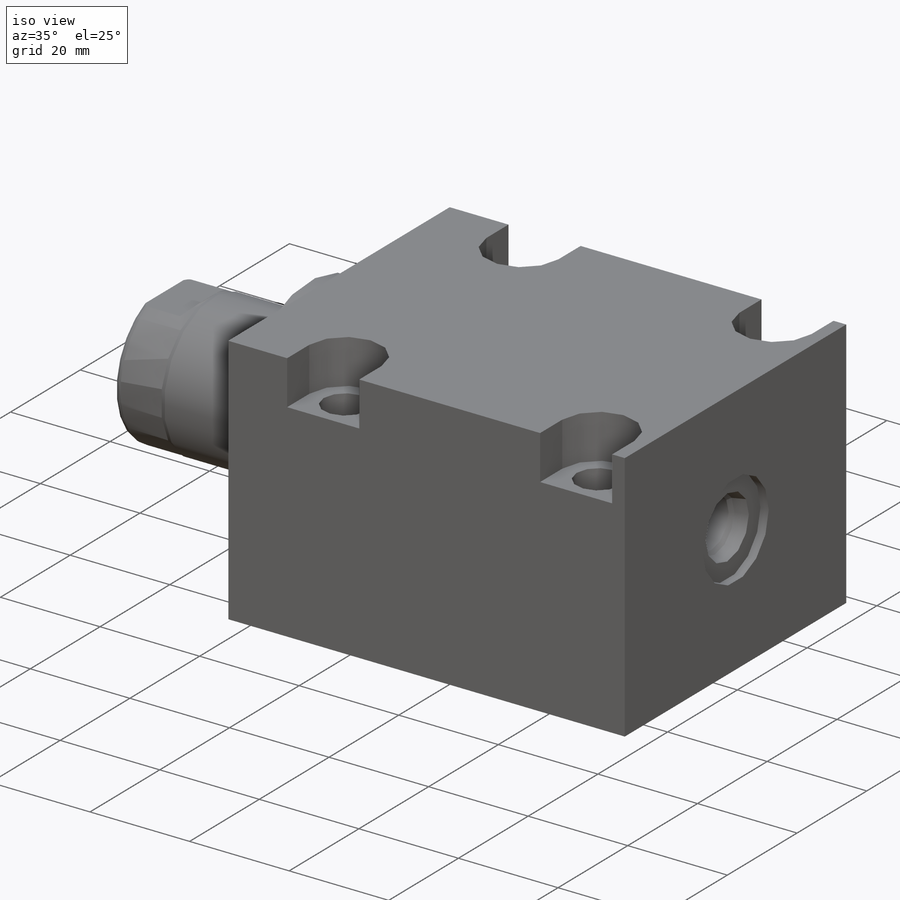
[diagram: iso view]
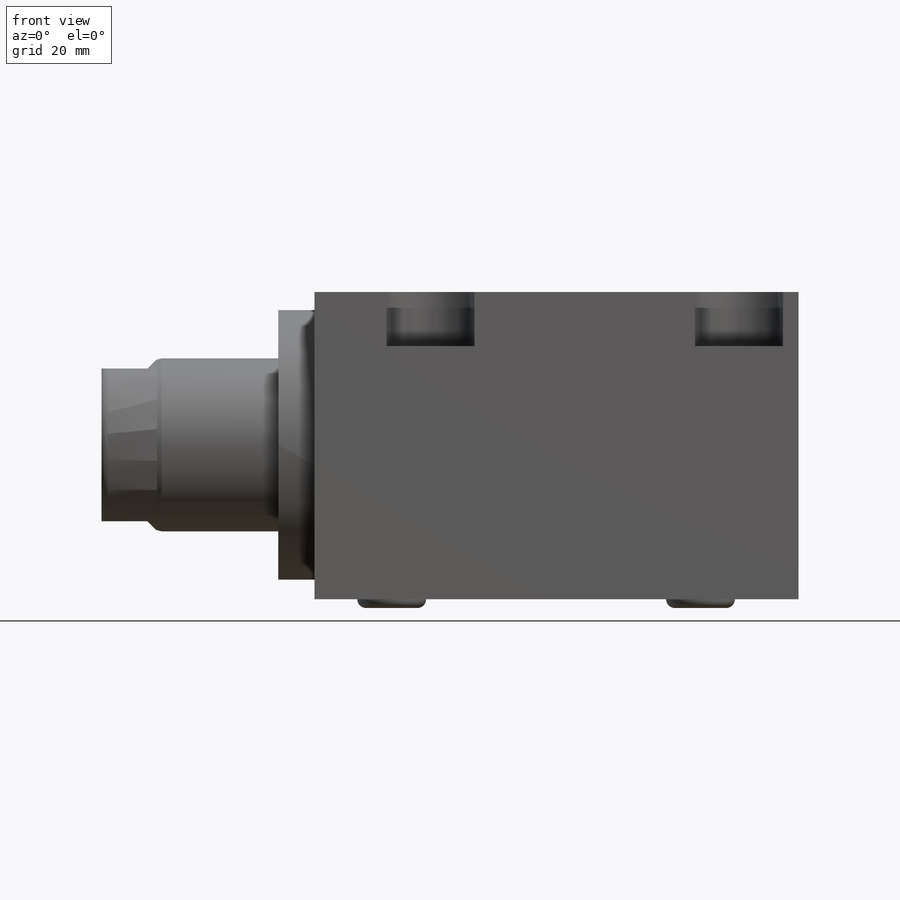
[diagram: front view]
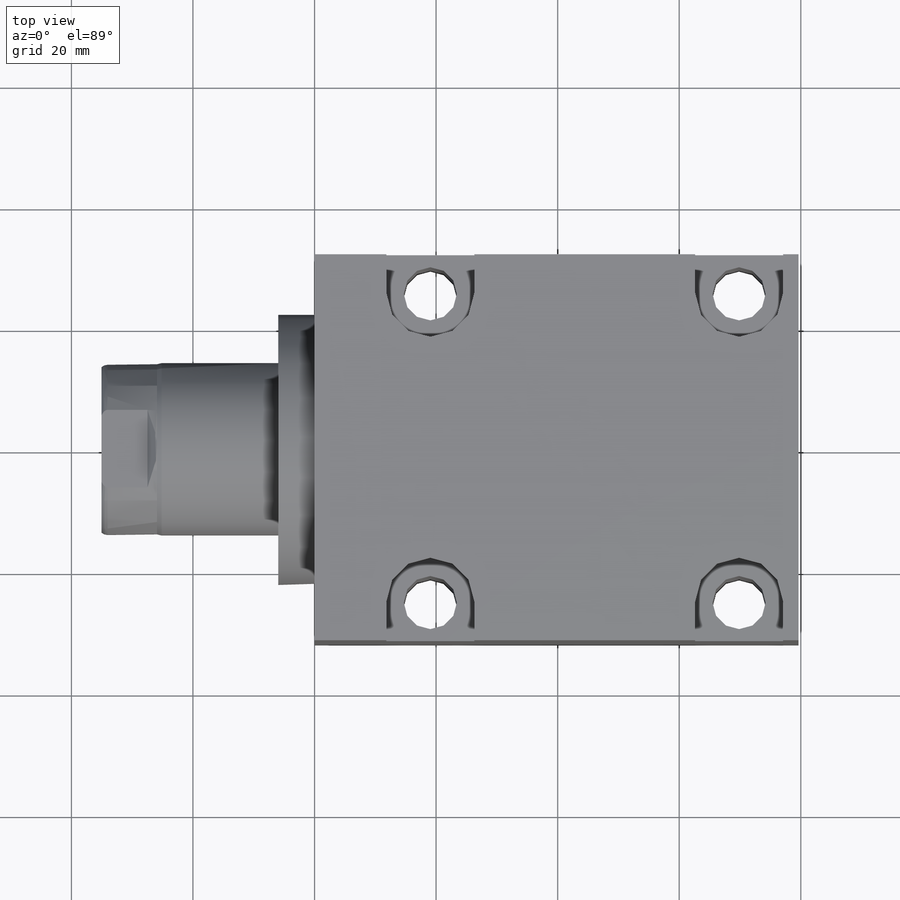
[diagram: top view]
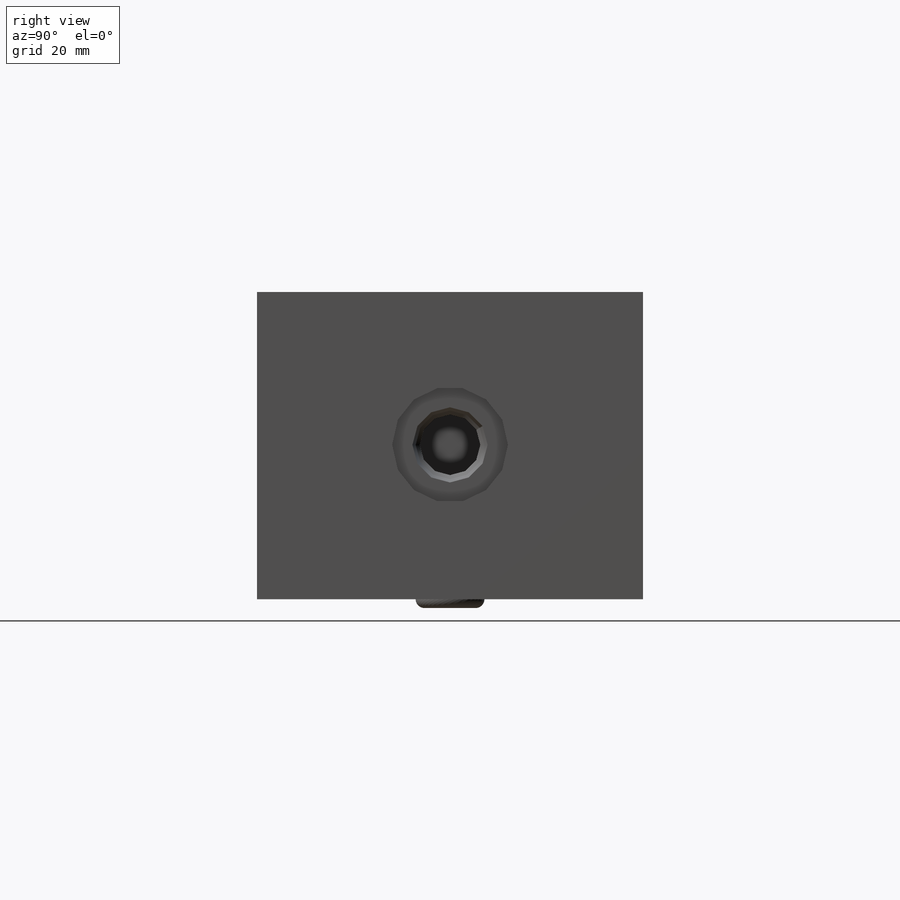
[diagram: right view]
SOLIDWORKS PART (.sldprt)
format: sldprt  version: not decoded by parser v0  size: 405,504 bytes
history: native  units: mm
features: sketch x15, plane x5, cut_revolve x3, hole x3, extrude x2, revolve x2, cut_extrude x2, pattern_linear x2, material x1, chamfer x1 (+13 scaffold rows collapsed)
feature tree (49):
  scaffold x13  (default folders/planes/origin — collapsed)
  material  "Alloy Steel"
  plane  "Plane1"
  sketch  "Sketch1"  dims[c1.D1=50.546mm c1.D2=25.4mm c1.D3=63.5mm c1.D4=31.75mm c2.D2=25.4mm]
  extrude  "Extrude1"  Depth=79.629mm
  sketch  "Sketch5"  dims[D1=44.45mm]
  extrude  "Extrude2"  Depth=5.969mm
  plane  "Plane5"
  sketch  "Sketch6"  dims[D1=114.681mm D2=28.575mm]
  revolve  "Revolve1"  Angle=360deg
  plane  "Plane6"
  sketch  "S2D0001"  dims[c1.D1=2.2352mm c2.D1=30.0deg c2.D2=13.4874mm c2.D3=11.0998mm c2.D4=16.51mm c2.D5=2.5527mm c3.D5=59.0deg c3.D4=18.4912mm]
  cut_revolve  "Cut-Revolve4"  Angle=360deg
  plane  "Plane7"
  sketch  "Sketch8"  dims[D2=1.524mm D1=28.194mm D3=1.016mm D4=0.762mm D5=9.144mm]
  cut_revolve  "Cut-Revolve5"  Angle=360deg
  plane  "Plane11"
  sketch  "Sketch12"  dims[c1.D1=25.146mm c1.D2=7.5692mm c1.D3=~2.047498mm c2.D3=45.0deg]
  cut_extrude  "Cut-Extrude4"  Depth=60.96mm
  hole  "Hole2"  Diameter=8.7376mm Depth=50.546mm
  sketch  "Sketch17"  dims[c1.D1=33.3502mm c1.D2=19.05mm c1.D3=16.6878mm c2.D1=50.8mm]
  sketch  "Sketch16"  dims[Diameter=8.7376mm Depth=50.546mm]
  pattern_linear  "LPattern1"  Count1=2 Count2=1 Spacing1=50.8mm Spacing2=2.54mm
  sketch  "Sketch18"  dims[D1=14.478mm]
  cut_extrude  "Cut-Extrude5"  Depth=8.89mm
  hole  "Hole3"  Diameter=20mm Depth=100mm
  sketch  "Sketch20"  dims[D1=12.7mm]
  sketch  "Sketch19"  dims[c1.Hole Ø=20.0mm c1.Depth=100.0mm c1.Drill Angle=118.0deg c1.C.Sink Angle=90.0deg c1.C.Bore Ø=40.0mm c1.C.Bore Depth=20.0mm c1.Diameter=3.175mm c2.Depth=9.525mm c2.C-Bore Diameter=11.3411mm c2.C-Bore Depth=1.4478mm c2.Drill Angle=118.0deg]
  hole  "Hole4"  Diameter=20mm Depth=100mm
  sketch  "Sketch21"  dims[D1=50.8mm]
  sketch  "Sketch22"  dims[c1.Hole Ø=20.0mm c1.Depth=100.0mm c1.Drill Angle=118.0deg c1.C.Sink Angle=90.0deg c1.C.Bore Ø=40.0mm c1.C.Bore Depth=20.0mm c1.Diameter=3.175mm c2.Depth=9.525mm c2.C-Bore Diameter=11.3411mm c2.C-Bore Depth=1.4478mm c2.Drill Angle=118.0deg]
  chamfer  "Chamfer1"  Distance=0.635mm Angle=45deg
  sketch  "Sketch23"  dims[D1=2.8956mm D2=8.4455mm]
  revolve  "Revolve2"  Angle=360deg
  pattern_linear  "LPattern3"  Count1=2 Count2=1 Spacing1=50.8mm Spacing2=2.54mm
  sketch  "Sketch24"  dims[c1.D1=1.651mm c1.D2=19.05mm c1.D3=9.9568mm c1.D4=16.256mm c1.D5=~3.198328mm c2.D5=12.0deg c2.D6=~3.580148mm c3.D6=45.0deg c3.D7=12.3698mm c3.D8=2.5527mm]
  cut_revolve  "Cut-Revolve6"  Angle=360deg
decode coverage: 30 of 30 modeling features carry decoded parameters
note: ~ marks probable driven/reference dimensions
note: suppression state not decoded; provenance and decode notes live in map.json
